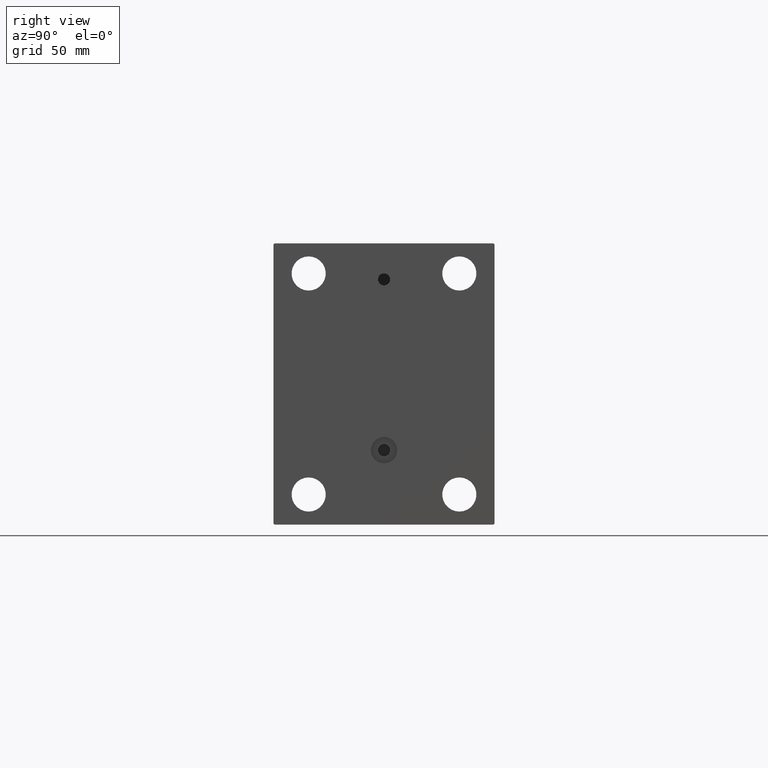
[diagram: clean part render]
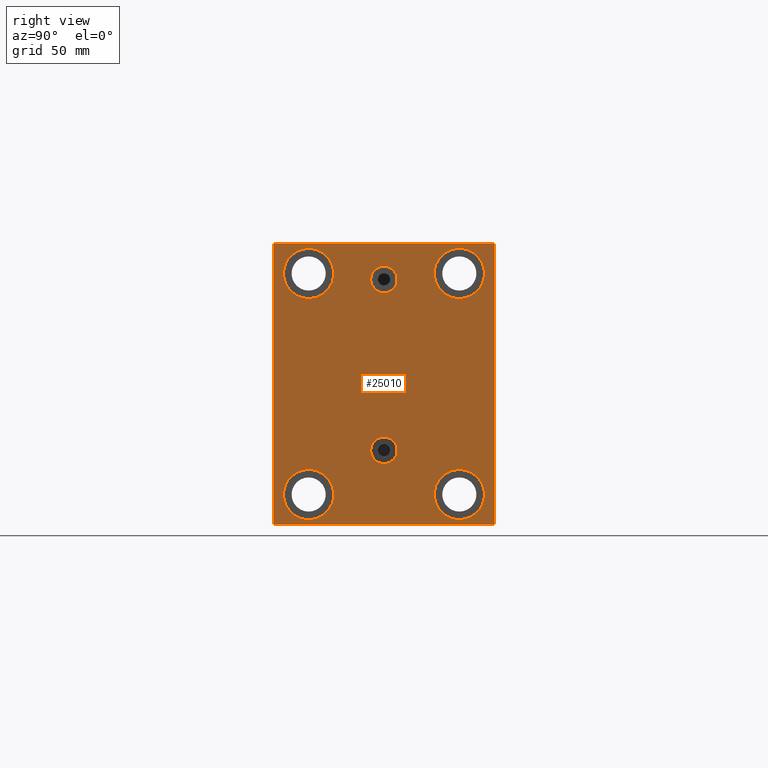
[diagram: same view with one face highlighted and labeled with its STEP entity id]
A machine part, right view. The second image highlights one B-rep face of the part: STEP entity #25010.
In plain terms, the highlighted planar face has unit normal (1, 0, 0).
Its self-contained STEP definition (entity closure, byte-faithful):
#157 = LINE ( 'NONE', #10777, #34083 ) ;
#1092 = FACE_BOUND ( 'NONE', #37723, .T. ) ;
#1536 = CARTESIAN_POINT ( 'NONE',  ( 193.0000000000000000, -55.00000000000000711, 69.49999999999998579 ) ) ;
#2107 = ORIENTED_EDGE ( 'NONE', *, *, #7090, .T. ) ;
#2166 = CARTESIAN_POINT ( 'NONE',  ( 193.0000000000000000, 37.49999999999997868, -54.99999999999999289 ) ) ;
#2572 = CIRCLE ( 'NONE', #6353, 6.580000000000002736 ) ;
#2856 = ORIENTED_EDGE ( 'NONE', *, *, #13211, .T. ) ;
#3048 = DIRECTION ( 'NONE',  ( -1.000000000000000000, -0.000000000000000000, -0.000000000000000000 ) ) ;
#3113 = ORIENTED_EDGE ( 'NONE', *, *, #4489, .T. ) ;
#3317 = CARTESIAN_POINT ( 'NONE',  ( 193.0000000000000000, 4.041334437186266200E-15, -33.00000000000000000 ) ) ;
#3639 = ORIENTED_EDGE ( 'NONE', *, *, #28732, .F. ) ;
#3653 = DIRECTION ( 'NONE',  ( 0.000000000000000000, 0.000000000000000000, 1.000000000000000000 ) ) ;
#3829 = CARTESIAN_POINT ( 'NONE',  ( 193.0000000000000000, -8.775864102628257178E-15, 52.00000000000000711 ) ) ;
#4489 = EDGE_CURVE ( 'NONE', #31196, #31686, #43188, .T. ) ;
#4895 = CARTESIAN_POINT ( 'NONE',  ( 193.0000000000000000, 37.50000000000000711, 67.50000000000000000 ) ) ;
#5136 = CARTESIAN_POINT ( 'NONE',  ( 193.0000000000000000, 37.50000000000000711, 55.00000000000000711 ) ) ;
#5163 = EDGE_LOOP ( 'NONE', ( #42594, #3639 ) ) ;
#5339 = CARTESIAN_POINT ( 'NONE',  ( 193.0000000000000000, 0.000000000000000000, 0.000000000000000000 ) ) ;
#5415 = CARTESIAN_POINT ( 'NONE',  ( 193.0000000000000000, 54.99999999999999289, 69.50000000000002842 ) ) ;
#5526 = VECTOR ( 'NONE', #20746, 1000.000000000000000 ) ;
#5668 = EDGE_CURVE ( 'NONE', #10246, #26135, #41002, .T. ) ;
#5837 = DIRECTION ( 'NONE',  ( 0.000000000000000000, -1.982541115402065110E-16, 1.000000000000000000 ) ) ;
#6036 = EDGE_CURVE ( 'NONE', #26135, #10246, #2572, .T. ) ;
#6059 = ORIENTED_EDGE ( 'NONE', *, *, #39136, .T. ) ;
#6353 = AXIS2_PLACEMENT_3D ( 'NONE', #3829, #32360, #7372 ) ;
#6920 = CARTESIAN_POINT ( 'NONE',  ( 193.0000000000000000, -37.50000000000000711, 55.00000000000000711 ) ) ;
#7021 = AXIS2_PLACEMENT_3D ( 'NONE', #3317, #21681, #32310 ) ;
#7090 = EDGE_CURVE ( 'NONE', #40609, #35808, #33504, .T. ) ;
#7372 = DIRECTION ( 'NONE',  ( 0.000000000000000000, 0.000000000000000000, -1.000000000000000000 ) ) ;
#7406 = CARTESIAN_POINT ( 'NONE',  ( 193.0000000000000000, -62.24999999999776890, -62.25000000000295586 ) ) ;
#8210 = CARTESIAN_POINT ( 'NONE',  ( 193.0000000000000000, 37.49999999999997868, -67.49999999999998579 ) ) ;
#8462 = CARTESIAN_POINT ( 'NONE',  ( 193.0000000000000000, -54.50000000000003553, 69.99999999999998579 ) ) ;
#8693 = CARTESIAN_POINT ( 'NONE',  ( 193.0000000000000000, 4.041334437186266200E-15, -39.58000000000000540 ) ) ;
#8799 = CARTESIAN_POINT ( 'NONE',  ( 193.0000000000000000, 4.847152031025224453E-15, -26.41999999999999815 ) ) ;
#9031 = CARTESIAN_POINT ( 'NONE',  ( 193.0000000000000000, 54.49999999999999289, 70.00000000000000000 ) ) ;
#9385 = VERTEX_POINT ( 'NONE', #21689 ) ;
#9712 = VERTEX_POINT ( 'NONE', #8693 ) ;
#10246 = VERTEX_POINT ( 'NONE', #28778 ) ;
#10367 = EDGE_LOOP ( 'NONE', ( #11263, #30837 ) ) ;
#10395 = EDGE_CURVE ( 'NONE', #39778, #31196, #22162, .T. ) ;
#10777 = CARTESIAN_POINT ( 'NONE',  ( 193.0000000000000000, -55.00000000000000711, 69.99999999999998579 ) ) ;
#11119 = CIRCLE ( 'NONE', #42032, 12.49999999999999645 ) ;
#11123 = ORIENTED_EDGE ( 'NONE', *, *, #10395, .T. ) ;
#11263 = ORIENTED_EDGE ( 'NONE', *, *, #6036, .F. ) ;
#11303 = DIRECTION ( 'NONE',  ( 0.000000000000000000, 1.000000000000000000, 2.523234146875355012E-16 ) ) ;
#11698 = VECTOR ( 'NONE', #5837, 1000.000000000000000 ) ;
#12653 = FACE_OUTER_BOUND ( 'NONE', #42857, .T. ) ;
#12999 = CARTESIAN_POINT ( 'NONE',  ( 193.0000000000000000, 62.25000000000153477, -62.24999999999808153 ) ) ;
#13029 = AXIS2_PLACEMENT_3D ( 'NONE', #14099, #21382, #31550 ) ;
#13211 = EDGE_CURVE ( 'NONE', #40206, #39778, #41262, .T. ) ;
#13257 = VECTOR ( 'NONE', #46374, 999.9999999999998863 ) ;
#13361 = DIRECTION ( 'NONE',  ( 0.000000000000000000, 0.000000000000000000, 1.000000000000000000 ) ) ;
#13534 = DIRECTION ( 'NONE',  ( 0.000000000000000000, 0.000000000000000000, 1.000000000000000000 ) ) ;
#14099 = CARTESIAN_POINT ( 'NONE',  ( 193.0000000000000000, 37.50000000000000711, 55.00000000000000711 ) ) ;
#14281 = VECTOR ( 'NONE', #26909, 1000.000000000000000 ) ;
#14434 = CARTESIAN_POINT ( 'NONE',  ( 193.0000000000000000, 55.00000000000002132, -69.50000000000000000 ) ) ;
#14515 = EDGE_CURVE ( 'NONE', #33782, #27786, #17547, .T. ) ;
#15054 = VERTEX_POINT ( 'NONE', #35165 ) ;
#15100 = AXIS2_PLACEMENT_3D ( 'NONE', #2166, #23625, #26463 ) ;
#15163 = EDGE_CURVE ( 'NONE', #27786, #24032, #43645, .T. ) ;
#15783 = ORIENTED_EDGE ( 'NONE', *, *, #36440, .T. ) ;
#15895 = DIRECTION ( 'NONE',  ( 0.000000000000000000, 0.000000000000000000, 1.000000000000000000 ) ) ;
#15944 = FACE_BOUND ( 'NONE', #25063, .T. ) ;
#16062 = LINE ( 'NONE', #12999, #14281 ) ;
#16121 = CARTESIAN_POINT ( 'NONE',  ( 193.0000000000000000, 37.49999999999997868, -54.99999999999999289 ) ) ;
#16288 = LINE ( 'NONE', #30675, #25612 ) ;
#16788 = ORIENTED_EDGE ( 'NONE', *, *, #26748, .T. ) ;
#17423 = DIRECTION ( 'NONE',  ( 0.000000000000000000, 0.000000000000000000, 1.000000000000000000 ) ) ;
#17547 = LINE ( 'NONE', #7406, #13257 ) ;
#17563 = ORIENTED_EDGE ( 'NONE', *, *, #24798, .T. ) ;
#19168 = AXIS2_PLACEMENT_3D ( 'NONE', #32747, #3048, #17423 ) ;
#19284 = VECTOR ( 'NONE', #22632, 1000.000000000000000 ) ;
#19460 = CARTESIAN_POINT ( 'NONE',  ( 193.0000000000000000, -55.00000000000000711, -69.50000000000007105 ) ) ;
#19712 = DIRECTION ( 'NONE',  ( 1.000000000000000000, 0.000000000000000000, 0.000000000000000000 ) ) ;
#19851 = CIRCLE ( 'NONE', #7021, 6.580000000000002736 ) ;
#19968 = DIRECTION ( 'NONE',  ( 0.000000000000000000, 0.000000000000000000, 1.000000000000000000 ) ) ;
#19976 = EDGE_CURVE ( 'NONE', #35808, #40609, #11119, .T. ) ;
#20198 = DIRECTION ( 'NONE',  ( -1.000000000000000000, -0.000000000000000000, -0.000000000000000000 ) ) ;
#20211 = CARTESIAN_POINT ( 'NONE',  ( 193.0000000000000000, 55.00000000000002132, -70.00000000000000000 ) ) ;
#20376 = AXIS2_PLACEMENT_3D ( 'NONE', #23739, #20198, #13361 ) ;
#20466 = DIRECTION ( 'NONE',  ( 0.000000000000000000, 0.000000000000000000, 1.000000000000000000 ) ) ;
#20555 = ORIENTED_EDGE ( 'NONE', *, *, #41578, .T. ) ;
#20746 = DIRECTION ( 'NONE',  ( 0.000000000000000000, -1.000000000000000000, -1.261617073437677999E-16 ) ) ;
#20907 = CARTESIAN_POINT ( 'NONE',  ( 193.0000000000000000, -54.50000000000000711, -70.00000000000002842 ) ) ;
#21157 = ORIENTED_EDGE ( 'NONE', *, *, #25279, .T. ) ;
#21382 = DIRECTION ( 'NONE',  ( -1.000000000000000000, -0.000000000000000000, -0.000000000000000000 ) ) ;
#21555 = ORIENTED_EDGE ( 'NONE', *, *, #36171, .T. ) ;
#21681 = DIRECTION ( 'NONE',  ( 1.000000000000000000, 0.000000000000000000, -0.000000000000000000 ) ) ;
#21689 = CARTESIAN_POINT ( 'NONE',  ( 193.0000000000000000, -37.50000000000002132, -67.49999999999998579 ) ) ;
#22162 = LINE ( 'NONE', #33267, #19284 ) ;
#22484 = DIRECTION ( 'NONE',  ( -1.000000000000000000, -0.000000000000000000, -0.000000000000000000 ) ) ;
#22514 = VERTEX_POINT ( 'NONE', #4895 ) ;
#22587 = ORIENTED_EDGE ( 'NONE', *, *, #15163, .T. ) ;
#22632 = DIRECTION ( 'NONE',  ( -0.000000000000000000, -0.7071067811865671127, 0.7071067811865279218 ) ) ;
#23333 = AXIS2_PLACEMENT_3D ( 'NONE', #5339, #19712, #34119 ) ;
#23338 = EDGE_CURVE ( 'NONE', #22514, #39476, #28545, .T. ) ;
#23582 = CIRCLE ( 'NONE', #13029, 12.49999999999999645 ) ;
#23625 = DIRECTION ( 'NONE',  ( -1.000000000000000000, -0.000000000000000000, -0.000000000000000000 ) ) ;
#23739 = CARTESIAN_POINT ( 'NONE',  ( 193.0000000000000000, -37.50000000000002132, -54.99999999999999289 ) ) ;
#23777 = CARTESIAN_POINT ( 'NONE',  ( 193.0000000000000000, -37.50000000000000711, 67.50000000000000000 ) ) ;
#24009 = CARTESIAN_POINT ( 'NONE',  ( 193.0000000000000000, -8.775864102628257178E-15, 45.42000000000000171 ) ) ;
#24032 = VERTEX_POINT ( 'NONE', #45046 ) ;
#24242 = ORIENTED_EDGE ( 'NONE', *, *, #19976, .T. ) ;
#24787 = ORIENTED_EDGE ( 'NONE', *, *, #14515, .T. ) ;
#24798 = EDGE_CURVE ( 'NONE', #24032, #40206, #16062, .T. ) ;
#25010 = ADVANCED_FACE ( 'NONE', ( #33885, #34355, #1092, #27246, #15944, #30332, #12653 ), #37666, .T. ) ;
#25063 = EDGE_LOOP ( 'NONE', ( #20555, #27487 ) ) ;
#25215 = CARTESIAN_POINT ( 'NONE',  ( 193.0000000000000000, 54.99999999999999289, 70.00000000000000000 ) ) ;
#25279 = EDGE_CURVE ( 'NONE', #38488, #32529, #31615, .T. ) ;
#25346 = CARTESIAN_POINT ( 'NONE',  ( 193.0000000000000000, -37.50000000000000711, 55.00000000000000711 ) ) ;
#25612 = VECTOR ( 'NONE', #45100, 1000.000000000000000 ) ;
#25743 = CARTESIAN_POINT ( 'NONE',  ( 193.0000000000000000, 4.041334437186266200E-15, -33.00000000000000000 ) ) ;
#26135 = VERTEX_POINT ( 'NONE', #24009 ) ;
#26463 = DIRECTION ( 'NONE',  ( 0.000000000000000000, 0.000000000000000000, 1.000000000000000000 ) ) ;
#26748 = EDGE_CURVE ( 'NONE', #31686, #33017, #16288, .T. ) ;
#26909 = DIRECTION ( 'NONE',  ( -0.000000000000000000, 0.7071067811865279218, 0.7071067811865671127 ) ) ;
#27246 = FACE_BOUND ( 'NONE', #42340, .T. ) ;
#27487 = ORIENTED_EDGE ( 'NONE', *, *, #23338, .T. ) ;
#27786 = VERTEX_POINT ( 'NONE', #20907 ) ;
#28545 = CIRCLE ( 'NONE', #43637, 12.49999999999999645 ) ;
#28732 = EDGE_CURVE ( 'NONE', #43167, #9712, #44435, .T. ) ;
#28778 = CARTESIAN_POINT ( 'NONE',  ( 193.0000000000000000, -7.970046508789298136E-15, 58.58000000000000540 ) ) ;
#28916 = DIRECTION ( 'NONE',  ( 0.000000000000000000, 0.000000000000000000, -1.000000000000000000 ) ) ;
#30141 = EDGE_LOOP ( 'NONE', ( #15783, #43986 ) ) ;
#30332 = FACE_BOUND ( 'NONE', #30141, .T. ) ;
#30675 = CARTESIAN_POINT ( 'NONE',  ( 193.0000000000000000, -62.25000000000152767, 62.24999999999806732 ) ) ;
#30837 = ORIENTED_EDGE ( 'NONE', *, *, #5668, .F. ) ;
#31196 = VERTEX_POINT ( 'NONE', #9031 ) ;
#31270 = CARTESIAN_POINT ( 'NONE',  ( 193.0000000000000000, -8.775864102628257178E-15, 52.00000000000000711 ) ) ;
#31550 = DIRECTION ( 'NONE',  ( 0.000000000000000000, 0.000000000000000000, 1.000000000000000000 ) ) ;
#31615 = CIRCLE ( 'NONE', #40709, 12.49999999999999645 ) ;
#31686 = VERTEX_POINT ( 'NONE', #8462 ) ;
#32310 = DIRECTION ( 'NONE',  ( 0.000000000000000000, 0.000000000000000000, 1.000000000000000000 ) ) ;
#32360 = DIRECTION ( 'NONE',  ( 1.000000000000000000, 0.000000000000000000, 0.000000000000000000 ) ) ;
#32529 = VERTEX_POINT ( 'NONE', #8210 ) ;
#32747 = CARTESIAN_POINT ( 'NONE',  ( 193.0000000000000000, -37.50000000000002132, -54.99999999999999289 ) ) ;
#32840 = VECTOR ( 'NONE', #11303, 1000.000000000000000 ) ;
#33017 = VERTEX_POINT ( 'NONE', #1536 ) ;
#33267 = CARTESIAN_POINT ( 'NONE',  ( 193.0000000000000000, 62.24999999999849365, 62.25000000000193978 ) ) ;
#33379 = CARTESIAN_POINT ( 'NONE',  ( 193.0000000000000000, -37.50000000000000711, 42.50000000000000711 ) ) ;
#33504 = CIRCLE ( 'NONE', #46351, 12.49999999999999645 ) ;
#33782 = VERTEX_POINT ( 'NONE', #19460 ) ;
#33885 = FACE_BOUND ( 'NONE', #10367, .T. ) ;
#34083 = VECTOR ( 'NONE', #28916, 1000.000000000000000 ) ;
#34119 = DIRECTION ( 'NONE',  ( 0.000000000000000000, 0.000000000000000000, -1.000000000000000000 ) ) ;
#34136 = DIRECTION ( 'NONE',  ( 1.000000000000000000, 0.000000000000000000, 0.000000000000000000 ) ) ;
#34355 = FACE_BOUND ( 'NONE', #5163, .T. ) ;
#35165 = CARTESIAN_POINT ( 'NONE',  ( 193.0000000000000000, -37.50000000000002132, -42.49999999999999289 ) ) ;
#35808 = VERTEX_POINT ( 'NONE', #33379 ) ;
#36171 = EDGE_CURVE ( 'NONE', #32529, #38488, #39222, .T. ) ;
#36440 = EDGE_CURVE ( 'NONE', #9385, #15054, #40760, .T. ) ;
#37026 = CARTESIAN_POINT ( 'NONE',  ( 193.0000000000000000, -55.00000000000000711, -70.00000000000002842 ) ) ;
#37666 = PLANE ( 'NONE',  #23333 ) ;
#37723 = EDGE_LOOP ( 'NONE', ( #21555, #21157 ) ) ;
#38369 = DIRECTION ( 'NONE',  ( 0.000000000000000000, 0.000000000000000000, -1.000000000000000000 ) ) ;
#38488 = VERTEX_POINT ( 'NONE', #45853 ) ;
#38724 = AXIS2_PLACEMENT_3D ( 'NONE', #31270, #34136, #38369 ) ;
#39136 = EDGE_CURVE ( 'NONE', #33017, #33782, #157, .T. ) ;
#39222 = CIRCLE ( 'NONE', #15100, 12.49999999999999645 ) ;
#39476 = VERTEX_POINT ( 'NONE', #40216 ) ;
#39525 = DIRECTION ( 'NONE',  ( -1.000000000000000000, -0.000000000000000000, -0.000000000000000000 ) ) ;
#39778 = VERTEX_POINT ( 'NONE', #5415 ) ;
#40206 = VERTEX_POINT ( 'NONE', #14434 ) ;
#40216 = CARTESIAN_POINT ( 'NONE',  ( 193.0000000000000000, 37.50000000000000711, 42.50000000000000711 ) ) ;
#40609 = VERTEX_POINT ( 'NONE', #23777 ) ;
#40709 = AXIS2_PLACEMENT_3D ( 'NONE', #16121, #22484, #15895 ) ;
#40760 = CIRCLE ( 'NONE', #20376, 12.49999999999999645 ) ;
#41002 = CIRCLE ( 'NONE', #38724, 6.580000000000002736 ) ;
#41262 = LINE ( 'NONE', #20211, #11698 ) ;
#41578 = EDGE_CURVE ( 'NONE', #39476, #22514, #23582, .T. ) ;
#42032 = AXIS2_PLACEMENT_3D ( 'NONE', #25346, #39525, #3653 ) ;
#42170 = AXIS2_PLACEMENT_3D ( 'NONE', #25743, #46212, #20466 ) ;
#42340 = EDGE_LOOP ( 'NONE', ( #24242, #2107 ) ) ;
#42570 = CIRCLE ( 'NONE', #19168, 12.49999999999999645 ) ;
#42594 = ORIENTED_EDGE ( 'NONE', *, *, #42628, .F. ) ;
#42628 = EDGE_CURVE ( 'NONE', #9712, #43167, #19851, .T. ) ;
#42799 = DIRECTION ( 'NONE',  ( -1.000000000000000000, -0.000000000000000000, -0.000000000000000000 ) ) ;
#42857 = EDGE_LOOP ( 'NONE', ( #3113, #16788, #6059, #24787, #22587, #17563, #2856, #11123 ) ) ;
#43167 = VERTEX_POINT ( 'NONE', #8799 ) ;
#43188 = LINE ( 'NONE', #25215, #5526 ) ;
#43637 = AXIS2_PLACEMENT_3D ( 'NONE', #5136, #44780, #19968 ) ;
#43645 = LINE ( 'NONE', #37026, #32840 ) ;
#43986 = ORIENTED_EDGE ( 'NONE', *, *, #46473, .T. ) ;
#44435 = CIRCLE ( 'NONE', #42170, 6.580000000000002736 ) ;
#44780 = DIRECTION ( 'NONE',  ( -1.000000000000000000, -0.000000000000000000, -0.000000000000000000 ) ) ;
#45046 = CARTESIAN_POINT ( 'NONE',  ( 193.0000000000000000, 54.50000000000004974, -70.00000000000000000 ) ) ;
#45100 = DIRECTION ( 'NONE',  ( 0.000000000000000000, -0.7071067811865279218, -0.7071067811865671127 ) ) ;
#45853 = CARTESIAN_POINT ( 'NONE',  ( 193.0000000000000000, 37.49999999999997868, -42.49999999999999289 ) ) ;
#46212 = DIRECTION ( 'NONE',  ( 1.000000000000000000, 0.000000000000000000, -0.000000000000000000 ) ) ;
#46351 = AXIS2_PLACEMENT_3D ( 'NONE', #6920, #42799, #13534 ) ;
#46374 = DIRECTION ( 'NONE',  ( -0.000000000000000000, 0.7071067811865771047, -0.7071067811865180408 ) ) ;
#46473 = EDGE_CURVE ( 'NONE', #15054, #9385, #42570, .T. ) ;